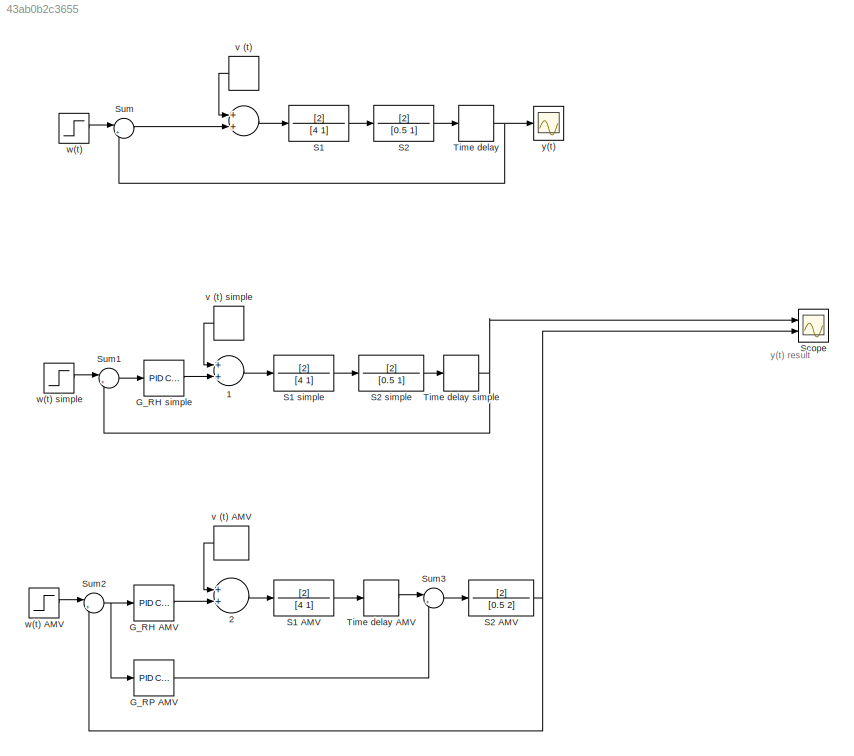
MODEL slx_43ab0b2c3655
KIND model
CONFIG AbsTol = auto
CONFIG EnableMultiTasking = off
CONFIG FixedStep = auto
CONFIG MaxStep = auto
CONFIG MinStep = auto
CONFIG RelTol = 1e-3
CONFIG SampleTimeConstraint = Unconstrained
CONFIG Solver = VariableStepAuto
CONFIG SolverName = VariableStepAuto
CONFIG StartTime = 0.0
CONFIG StopTime = 150
BLOCK [Sum]  
  InputSameDT = off
  OutDataTypeStr = Inherit: Inherit via internal rule
  Ports = [2, 1]
  SaturateOnIntegerOverflow = off
BLOCK [Sum]  1
  InputSameDT = off
  OutDataTypeStr = Inherit: Inherit via internal rule
  Ports = [2, 1]
  SaturateOnIntegerOverflow = off
BLOCK [Sum]  2
  InputSameDT = off
  OutDataTypeStr = Inherit: Inherit via internal rule
  Ports = [2, 1]
  SaturateOnIntegerOverflow = off
BLOCK [Reference] G_RH AMV  REF=simulink/Continuous/PID Controller
  Ports = [1, 1]
  SourceBlock = simulink/Continuous/PID Controller
  SourceProductBaseCode = SL
  SourceProductName = Simulink
  SourceType = PID 1dof
BLOCK [Reference] G_RH simple  REF=simulink/Continuous/PID Controller
  Ports = [1, 1]
  SourceBlock = simulink/Continuous/PID Controller
  SourceProductBaseCode = SL
  SourceProductName = Simulink
  SourceType = PID 1dof
BLOCK [Reference] G_RP AMV  REF=simulink/Continuous/PID Controller
  Ports = [1, 1]
  SourceBlock = simulink/Continuous/PID Controller
  SourceProductBaseCode = SL
  SourceProductName = Simulink
  SourceType = PID 1dof
BLOCK [TransferFcn] S1
  Denominator = [4 1]
  Numerator = [2]
BLOCK [TransferFcn] S1 AMV
  Denominator = [4 1]
  Numerator = [2]
BLOCK [TransferFcn] S1 simple
  Denominator = [4 1]
  Numerator = [2]
BLOCK [TransferFcn] S2
  Denominator = [0.5 1]
  Numerator = [2]
BLOCK [TransferFcn] S2 AMV
  Denominator = [0.5 2]
  Numerator = [2]
BLOCK [TransferFcn] S2 simple
  Denominator = [0.5 1]
  Numerator = [2]
BLOCK [Scope] Scope
  Floating = off
  NumInputPorts = 2
  Ports = [2]
  ScopeSpecificationString = Simulink.scopes.TimeScopeBlockCfg('CurrentConfiguration', extmgr.ConfigurationSet(extmgr.Configuration('Core','General UI',true),extmgr.Configuration('Core','Source UI',true),extmgr.Configuration('Sources','WiredSimulink',true,'DataLoggingVariableName','ScopeData1'),extmgr.Configuration('Visuals','Time Domain',true,'SerializedDisplays',{struct('MinYLimReal','-0.19142','MaxYLimReal','1.72278','YLab...<+1414ch>
BLOCK [Sum] Sum
  IconShape = round
  InputSameDT = off
  Inputs = |+-
  OutDataTypeStr = Inherit: Inherit via internal rule
  Ports = [2, 1]
  SaturateOnIntegerOverflow = off
BLOCK [Sum] Sum1
  IconShape = round
  InputSameDT = off
  Inputs = |+-
  OutDataTypeStr = Inherit: Inherit via internal rule
  Ports = [2, 1]
  SaturateOnIntegerOverflow = off
BLOCK [Sum] Sum2
  IconShape = round
  InputSameDT = off
  Inputs = |+-
  OutDataTypeStr = Inherit: Inherit via internal rule
  Ports = [2, 1]
  SaturateOnIntegerOverflow = off
BLOCK [Sum] Sum3
  IconShape = round
  InputSameDT = off
  Inputs = |++
  OutDataTypeStr = Inherit: Inherit via internal rule
  Ports = [2, 1]
  SaturateOnIntegerOverflow = off
BLOCK [TransportDelay] Time delay
  DelayTime = 2
  Ports = [1, 1]
BLOCK [TransportDelay] Time delay AMV
  DelayTime = 2
  Ports = [1, 1]
BLOCK [TransportDelay] Time delay simple
  DelayTime = 2
  Ports = [1, 1]
BLOCK [DiscretePulseGenerator] v (t)
  Amplitude = 0.5
  Period = 150
  PhaseDelay = 50
  Ports = [0, 1]
  PulseType = Time based
BLOCK [DiscretePulseGenerator] v (t) AMV
  Amplitude = 0.5
  Period = 150
  PhaseDelay = 50
  Ports = [0, 1]
  PulseType = Time based
BLOCK [DiscretePulseGenerator] v (t) simple
  Amplitude = 0.5
  Period = 150
  PhaseDelay = 50
  Ports = [0, 1]
  PulseType = Time based
BLOCK [Step] w(t)
  SampleTime = 0
BLOCK [Step] w(t) AMV
  SampleTime = 0
BLOCK [Step] w(t) simple
  SampleTime = 0
BLOCK [Scope] y(t)
  Floating = off
  NumInputPorts = 1
  Ports = [1]
  ScopeSpecificationString = Simulink.scopes.TimeScopeBlockCfg('CurrentConfiguration', extmgr.ConfigurationSet(extmgr.Configuration('Core','General UI',true),extmgr.Configuration('Core','Source UI',true),extmgr.Configuration('Sources','WiredSimulink',true),extmgr.Configuration('Visuals','Time Domain',true,'SerializedDisplays',{struct('MinYLimReal','-0.25189','MaxYLimReal','2.26703','YLabelReal','','MinYLimMag','0.00000','MaxY...<+1430ch>
ANNOTATION (root): y(t) result
LINE  1:1 -> S1 simple:1
LINE  2:1 -> S1 AMV:1
LINE  :1 -> S1:1
LINE G_RH AMV:1 ->  2:2
LINE G_RH simple:1 ->  1:2
LINE G_RP AMV:1 -> Sum3:2
LINE S1 AMV:1 -> Time delay AMV:1
LINE S1 simple:1 -> S2 simple:1
LINE S1:1 -> S2:1
NET S2 AMV:1 -> Scope:2, Sum2:2
LINE S2 simple:1 -> Time delay simple:1
LINE S2:1 -> Time delay:1
LINE Sum1:1 -> G_RH simple:1
NET Sum2:1 -> G_RH AMV:1, G_RP AMV:1
LINE Sum3:1 -> S2 AMV:1
LINE Sum:1 ->  :2
LINE Time delay AMV:1 -> Sum3:1
NET Time delay simple:1 -> Scope:1, Sum1:2
NET Time delay:1 -> Sum:2, y(t):1
LINE v (t) AMV:1 ->  2:1
LINE v (t) simple:1 ->  1:1
LINE v (t):1 ->  :1
LINE w(t) AMV:1 -> Sum2:1
LINE w(t) simple:1 -> Sum1:1
LINE w(t):1 -> Sum:1
note: NET lines group one-source signal fan-out (src -> all destinations, sorted); 1:1 wires keep LINE
